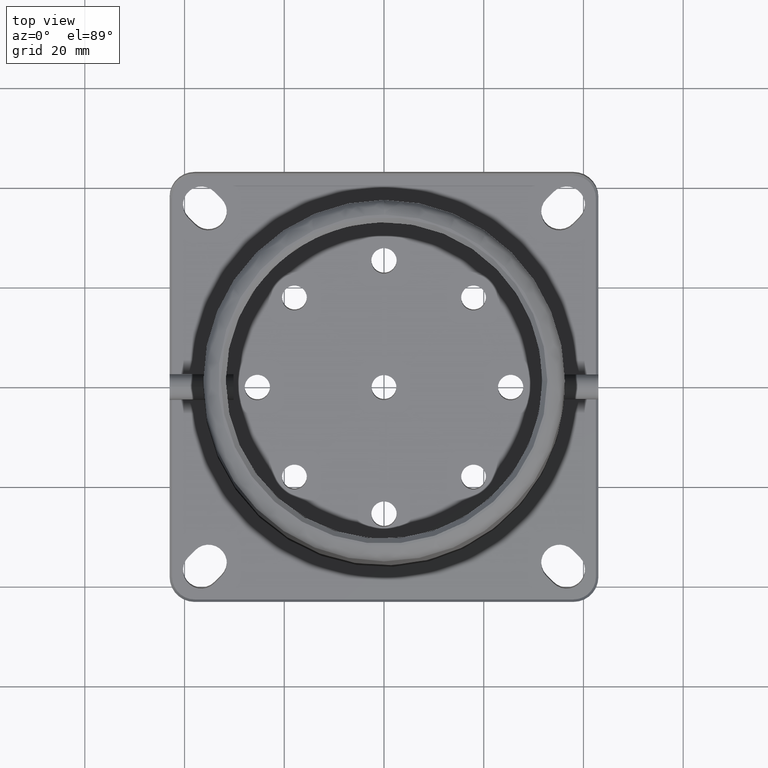
[diagram: clean part render]
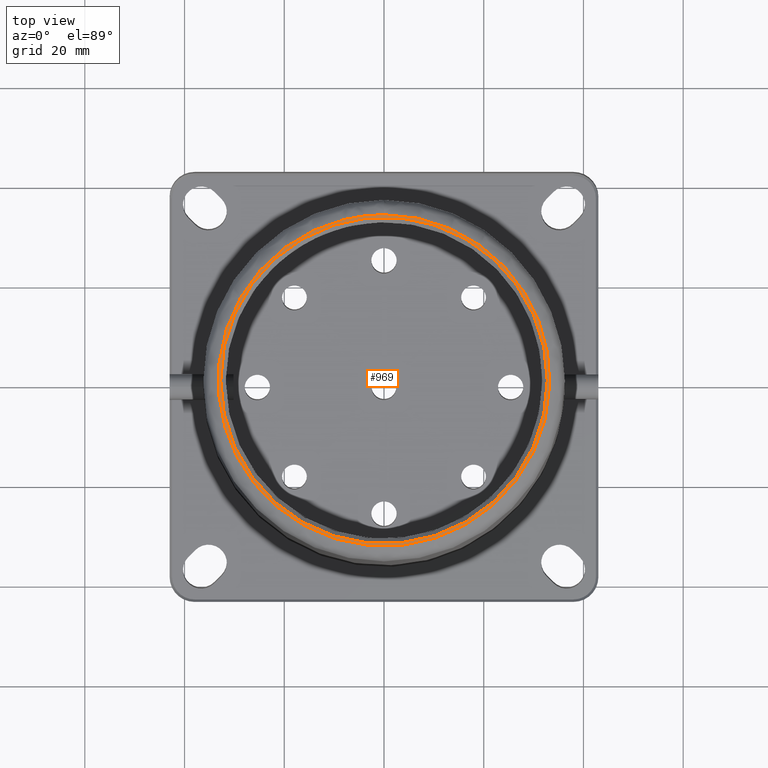
[diagram: same view with one face highlighted and labeled with its STEP entity id]
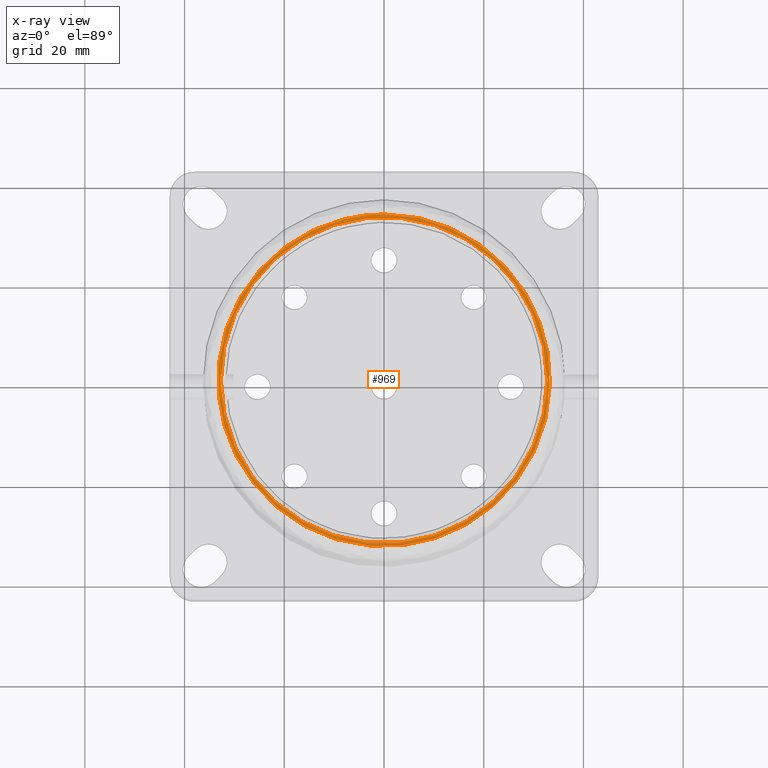
[diagram: x-ray of the same camera — body ghosted, the highlighted face saturated]
A machine part, top view. The second image highlights one B-rep face of the part: STEP entity #969.
The next image is the same camera in x-ray: the body ghosted, the highlighted face saturated — about 0% of this face is hidden behind the body in this view.
In plain terms, the highlighted planar face has unit normal (0, 0, 1).
Its self-contained STEP definition (entity closure, byte-faithful):
#61 = EDGE_CURVE ( 'NONE', #2951, #2951, #1865, .T. ) ;
#92 = CARTESIAN_POINT ( 'NONE',  ( 32.74999999999997868, 6.938893903907228378E-15, 82.00000000000000000 ) ) ;
#93 = CARTESIAN_POINT ( 'NONE',  ( 66.50000000000008527, -33.24999999999973710, 82.00000000000000000 ) ) ;
#340 = DIRECTION ( 'NONE',  ( 1.000000000000000000, 0.000000000000000000, -8.326672684688665425E-17 ) ) ;
#442 = CARTESIAN_POINT ( 'NONE',  ( 1.958484776845412838E-16, 6.938893903907228378E-15, 82.00000000000000000 ) ) ;
#744 = DIRECTION ( 'NONE',  ( 1.000000000000000000, 0.000000000000000000, 0.000000000000000000 ) ) ;
#863 = FACE_OUTER_BOUND ( 'NONE', #1309, .T. ) ;
#945 = ORIENTED_EDGE ( 'NONE', *, *, #1655, .T. ) ;
#969 = ADVANCED_FACE ( 'NONE', ( #863, #1136 ), #3291, .T. ) ;
#1136 = FACE_BOUND ( 'NONE', #1288, .T. ) ;
#1179 = CARTESIAN_POINT ( 'NONE',  ( 1.207117379151738249E-13, -33.24999999999997868, 82.00000000000000000 ) ) ;
#1288 = EDGE_LOOP ( 'NONE', ( #945 ) ) ;
#1309 = EDGE_LOOP ( 'NONE', ( #2263 ) ) ;
#1405 = CARTESIAN_POINT ( 'NONE',  ( -1.243919915669696951E-13, 33.24999999999999289, 82.00000000000000000 ) ) ;
#1655 = EDGE_CURVE ( 'NONE', #3222, #3222, #2296, .T. ) ;
#1865 =( BOUNDED_CURVE ( )  B_SPLINE_CURVE ( 3, ( #2175, #2191, #93, #1179, #2741, #2519, #2708 ),
 .UNSPECIFIED., .T., .F. ) 
 B_SPLINE_CURVE_WITH_KNOTS ( ( 4, 3, 4 ),
 ( 0.000000000000000000, 0.5000000000000000000, 1.000000000000000000 ),
 .UNSPECIFIED. ) 
 CURVE ( )  GEOMETRIC_REPRESENTATION_ITEM ( )  RATIONAL_B_SPLINE_CURVE ( ( 1.000000000000000000, 0.3333333333333333703, 0.3333333333333333703, 1.000000000000000000, 0.3333333333333333703, 0.3333333333333333703, 1.000000000000000000 ) ) 
 REPRESENTATION_ITEM ( '' )  );
#2175 = CARTESIAN_POINT ( 'NONE',  ( -1.243919915669696951E-13, 33.24999999999999289, 82.00000000000000000 ) ) ;
#2191 = CARTESIAN_POINT ( 'NONE',  ( 66.49999999999984368, 33.25000000000024158, 82.00000000000000000 ) ) ;
#2263 = ORIENTED_EDGE ( 'NONE', *, *, #61, .F. ) ;
#2296 = CIRCLE ( 'NONE', #2682, 32.74999999999997868 ) ;
#2519 = CARTESIAN_POINT ( 'NONE',  ( -66.50000000000008527, 33.24999999999974420, 82.00000000000000000 ) ) ;
#2682 = AXIS2_PLACEMENT_3D ( 'NONE', #442, #2873, #744 ) ;
#2708 = CARTESIAN_POINT ( 'NONE',  ( -1.243919915669696951E-13, 33.24999999999999289, 82.00000000000000000 ) ) ;
#2741 = CARTESIAN_POINT ( 'NONE',  ( -66.49999999999984368, -33.25000000000022737, 82.00000000000000000 ) ) ;
#2873 = DIRECTION ( 'NONE',  ( -0.000000000000000000, -0.000000000000000000, -1.000000000000000000 ) ) ;
#2951 = VERTEX_POINT ( 'NONE', #1405 ) ;
#2954 = DIRECTION ( 'NONE',  ( 8.326672684688665425E-17, 2.148802014768426269E-17, 1.000000000000000000 ) ) ;
#3002 = CARTESIAN_POINT ( 'NONE',  ( -3.404805525213437893E-13, 31.75000000000000000, 82.00000000000000000 ) ) ;
#3222 = VERTEX_POINT ( 'NONE', #92 ) ;
#3291 = PLANE ( 'NONE',  #3303 ) ;
#3303 = AXIS2_PLACEMENT_3D ( 'NONE', #3002, #2954, #340 ) ;